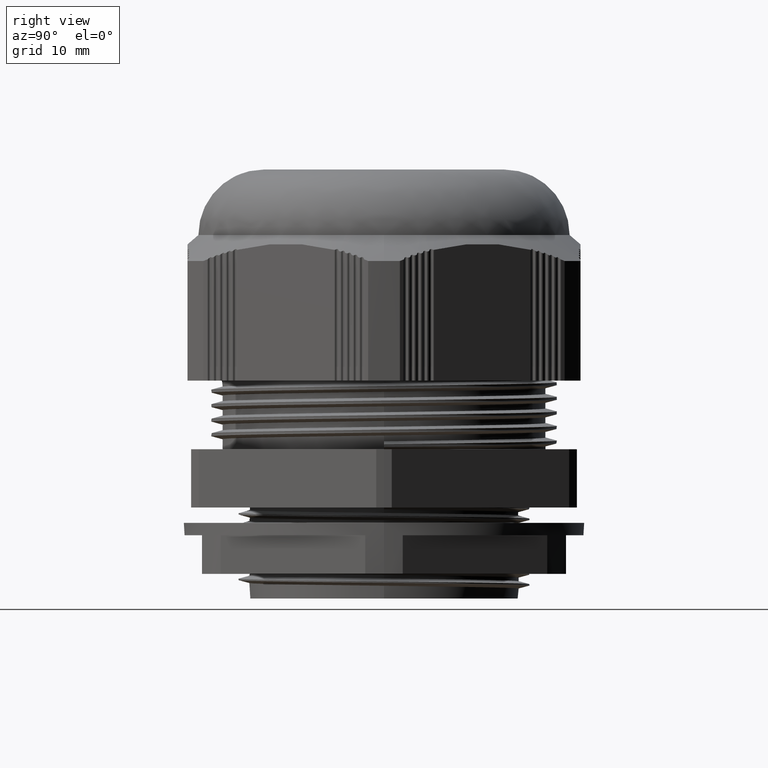
[diagram: clean part render]
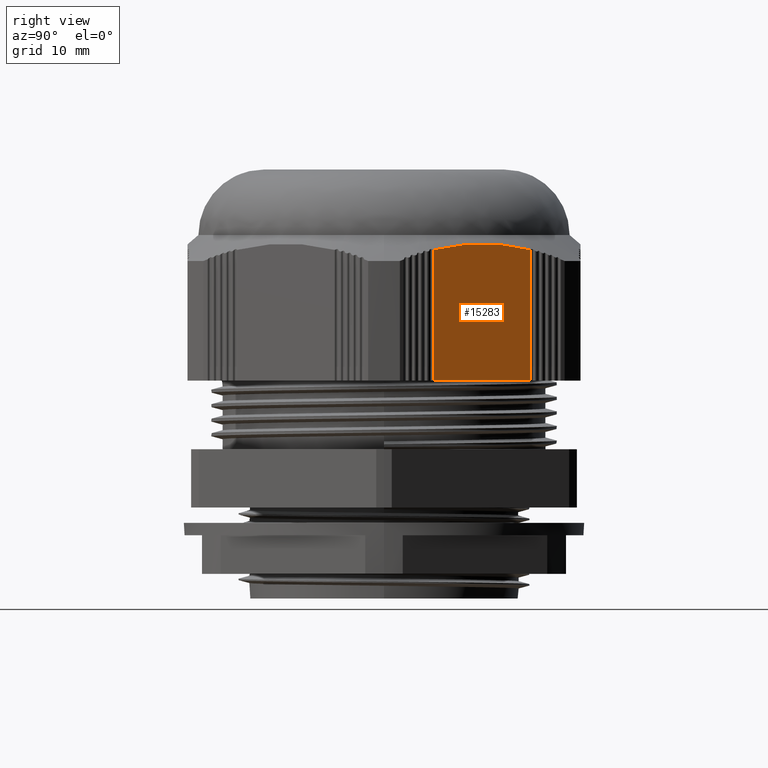
[diagram: same view with one face highlighted and labeled with its STEP entity id]
A machine part, right view. The second image highlights one B-rep face of the part: STEP entity #15283.
In plain terms, the highlighted planar face has unit normal (-0.866, -0.5, 0).
Its self-contained STEP definition (entity closure, byte-faithful):
#635 = CARTESIAN_POINT ( 'NONE',  ( 27.20452796654463500, 6.880375366016274100, 47.90698286337850900 ) ) ;
#714 = CARTESIAN_POINT ( 'NONE',  ( 19.56084401194468500, 20.11962433239407800, 47.90698293856723200 ) ) ;
#1631 = LINE ( 'NONE', #2228, #9552 ) ;
#2228 = CARTESIAN_POINT ( 'NONE',  ( 19.56084392487490200, 20.11962448319160400, 49.93713426674088400 ) ) ;
#2661 = DIRECTION ( 'NONE',  ( -0.0000000000000000000, -0.0000000000000000000, -1.000000000000000000 ) ) ;
#3311 = DIRECTION ( 'NONE',  ( 0.5000000000000004400, -0.8660254037844383700, 0.0000000000000000000 ) ) ;
#3314 = FACE_OUTER_BOUND ( 'NONE', #10234, .T. ) ;
#3316 = DIRECTION ( 'NONE',  ( -0.8660254037844383700, -0.5000000000000004400, 0.0000000000000000000 ) ) ;
#3323 = CARTESIAN_POINT ( 'NONE',  ( 31.17691453623977400, 0.0000000000000000000, 49.93713426674088400 ) ) ;
#3331 = PLANE ( 'NONE',  #9515 ) ;
#4019 = LINE ( 'NONE', #4042, #9504 ) ;
#4030 = DIRECTION ( 'NONE',  ( 0.0000000000000000000, 0.0000000000000000000, 1.000000000000000000 ) ) ;
#4042 = CARTESIAN_POINT ( 'NONE',  ( 27.20452796654460700, 6.880375366016269600, 49.93713426674088400 ) ) ;
#4201 = CARTESIAN_POINT ( 'NONE',  ( 24.65663328598804000, 11.29345840507471600, 29.93713426674088400 ) ) ;
#4205 = CARTESIAN_POINT ( 'NONE',  ( 22.10873860543146900, 15.70654144413316500, 29.93713426674088400 ) ) ;
#4208 = CARTESIAN_POINT ( 'NONE',  ( 19.56084389005086900, 20.11962454350855700, 29.93713426674088400 ) ) ;
#4226 = CARTESIAN_POINT ( 'NONE',  ( 27.20452796654462800, 6.880375366016283000, 29.93713426674088400 ) ) ;
#8670 = VERTEX_POINT ( 'NONE', #21984 ) ;
#8703 = VERTEX_POINT ( 'NONE', #22012 ) ;
#9504 = VECTOR ( 'NONE', #4030, 1000.000000000000000 ) ;
#9515 = AXIS2_PLACEMENT_3D ( 'NONE', #3323, #3316, #3311 ) ;
#9552 = VECTOR ( 'NONE', #2661, 1000.000000000000000 ) ;
#9713 = EDGE_CURVE ( 'NONE', #10331, #10551, #11499, .T. ) ;
#10234 = EDGE_LOOP ( 'NONE', ( #18396, #18442, #18418, #18381 ) ) ;
#10331 = VERTEX_POINT ( 'NONE', #635 ) ;
#10551 = VERTEX_POINT ( 'NONE', #714 ) ;
#11499 = B_SPLINE_CURVE_WITH_KNOTS ( 'NONE', 3,
 ( #22700, #22765, #22759, #22744, #22771, #22739, #22788, #22775, #22776, #22791, #22763, #22756, #22774, #22746, #22783, #22789, #22773, #22784, #22787, #22777, #22745, #22738, #22793, #22764, #22780, #22792, #22778, #22781, #22794, #22751, #22740, #22753 ),
 .UNSPECIFIED., .F., .F.,
 ( 4, 2, 2, 2, 2, 2, 2, 1, 1, 2, 2, 2, 2, 1, 1, 2, 2, 4 ),
 ( 0.0000000000000000000, 0.1250000000000010000, 0.1875000000000016700, 0.2187500000000020800, 0.2500000000000025000, 0.3750000000000035500, 0.4375000000000038900, 0.4687500000000040500, 0.4843750000000042700, 0.4921875000000043900, 0.5000000000000044400, 0.6250000000000069900, 0.6875000000000083300, 0.7187500000000092100, 0.7343750000000094400, 0.7421875000000091000, 0.7500000000000088800, 1.000000000000000000 ),
 .UNSPECIFIED. ) ;
#11642 = B_SPLINE_CURVE_WITH_KNOTS ( 'NONE', 3,
 ( #4226, #4201, #4205, #4208 ),
 .UNSPECIFIED., .F., .F.,
 ( 4, 4 ),
 ( 0.0000000000000000000, 1.000000000000000000 ),
 .UNSPECIFIED. ) ;
#15283 = ADVANCED_FACE ( 'NONE', ( #3314 ), #3331, .F. ) ;
#16544 = EDGE_CURVE ( 'NONE', #8703, #10331, #4019, .T. ) ;
#16566 = EDGE_CURVE ( 'NONE', #8703, #8670, #11642, .T. ) ;
#16592 = EDGE_CURVE ( 'NONE', #10551, #8670, #1631, .T. ) ;
#18381 = ORIENTED_EDGE ( 'NONE', *, *, #16592, .F. ) ;
#18396 = ORIENTED_EDGE ( 'NONE', *, *, #9713, .F. ) ;
#18418 = ORIENTED_EDGE ( 'NONE', *, *, #16566, .T. ) ;
#18442 = ORIENTED_EDGE ( 'NONE', *, *, #16544, .F. ) ;
#21984 = CARTESIAN_POINT ( 'NONE',  ( 19.56084389005086900, 20.11962454350855700, 29.93713426674088400 ) ) ;
#22012 = CARTESIAN_POINT ( 'NONE',  ( 27.20452796654462800, 6.880375366016283000, 29.93713426674088400 ) ) ;
#22700 = CARTESIAN_POINT ( 'NONE',  ( 27.20452796654463500, 6.880375366016274100, 47.90698286337850900 ) ) ;
#22738 = CARTESIAN_POINT ( 'NONE',  ( 22.26929260423702700, 15.42816759009480500, 48.67708597896729800 ) ) ;
#22739 = CARTESIAN_POINT ( 'NONE',  ( 25.68317285126745400, 9.516231120952722800, 48.43972560170306000 ) ) ;
#22740 = CARTESIAN_POINT ( 'NONE',  ( 20.19960162877604400, 19.01334670855573300, 48.18278008986339200 ) ) ;
#22744 = CARTESIAN_POINT ( 'NONE',  ( 26.08229249297140800, 8.824571564555576200, 48.32567797836836800 ) ) ;
#22745 = CARTESIAN_POINT ( 'NONE',  ( 22.75302087587918400, 14.59031948137799800, 48.73103625162232100 ) ) ;
#22746 = CARTESIAN_POINT ( 'NONE',  ( 23.79095082711629400, 12.79286585768347200, 48.73868254825495000 ) ) ;
#22751 = CARTESIAN_POINT ( 'NONE',  ( 20.82933199002659200, 17.92252631958885100, 48.39121625712443400 ) ) ;
#22753 = CARTESIAN_POINT ( 'NONE',  ( 19.56084401194468500, 20.11962433239407800, 47.90698293856723200 ) ) ;
#22756 = CARTESIAN_POINT ( 'NONE',  ( 24.18269044394276100, 12.11447495758283600, 48.71195135713434600 ) ) ;
#22759 = CARTESIAN_POINT ( 'NONE',  ( 26.56175897526122800, 7.993761558432569600, 48.16826322285241000 ) ) ;
#22763 = CARTESIAN_POINT ( 'NONE',  ( 24.65321676556086300, 11.29987288038714700, 48.65908865815767800 ) ) ;
#22764 = CARTESIAN_POINT ( 'NONE',  ( 21.86565622341587600, 16.12745091732956800, 48.61383499603919500 ) ) ;
#22765 = CARTESIAN_POINT ( 'NONE',  ( 26.88215756732878600, 7.438779673442983400, 48.04618871291311400 ) ) ;
#22771 = CARTESIAN_POINT ( 'NONE',  ( 25.92265212669045800, 9.101230872108454100, 48.37386672864155900 ) ) ;
#22773 = CARTESIAN_POINT ( 'NONE',  ( 23.47735544414925400, 13.33602749867490000, 48.74760445861824100 ) ) ;
#22774 = CARTESIAN_POINT ( 'NONE',  ( 24.02601079707857000, 12.38577520778497600, 48.72524199228657700 ) ) ;
#22775 = CARTESIAN_POINT ( 'NONE',  ( 25.44362167265751800, 9.931310607812394100, 48.50023093114103300 ) ) ;
#22776 = CARTESIAN_POINT ( 'NONE',  ( 25.36282943663123700, 10.07128033363652400, 48.51917090659969000 ) ) ;
#22777 = CARTESIAN_POINT ( 'NONE',  ( 23.07533693689830300, 14.03233761063824800, 48.74871067767677600 ) ) ;
#22778 = CARTESIAN_POINT ( 'NONE',  ( 21.54182993150098500, 16.68845059212336000, 48.55007224015452700 ) ) ;
#22780 = CARTESIAN_POINT ( 'NONE',  ( 21.74438279772370600, 16.33756137713681200, 48.59177285488376400 ) ) ;
#22781 = CARTESIAN_POINT ( 'NONE',  ( 21.50127438368633300, 16.75869961413793200, 48.54128909760407900 ) ) ;
#22783 = CARTESIAN_POINT ( 'NONE',  ( 23.67341001658863300, 12.99644593810089600, 48.74377897704913900 ) ) ;
#22784 = CARTESIAN_POINT ( 'NONE',  ( 23.43812513187607400, 13.40397682043765000, 48.74795006055800400 ) ) ;
#22787 = CARTESIAN_POINT ( 'NONE',  ( 23.41910577517916200, 13.43691933037824500, 48.74805405657849600 ) ) ;
#22788 = CARTESIAN_POINT ( 'NONE',  ( 25.60334285508826500, 9.654566348715080800, 48.46060785066551100 ) ) ;
#22789 = CARTESIAN_POINT ( 'NONE',  ( 23.53619062089062900, 13.23412070986175800, 48.74688307455989600 ) ) ;
#22791 = CARTESIAN_POINT ( 'NONE',  ( 24.96758137561552700, 10.75587982185323800, 48.60652580081335100 ) ) ;
#22792 = CARTESIAN_POINT ( 'NONE',  ( 21.60264048186928000, 16.58311273473006200, 48.56303258965536400 ) ) ;
#22793 = CARTESIAN_POINT ( 'NONE',  ( 22.10799969782337700, 15.70759114968200300, 48.65452944915339400 ) ) ;
#22794 = CARTESIAN_POINT ( 'NONE',  ( 21.48042567645279300, 16.79481174725749100, 48.53670019490402200 ) ) ;